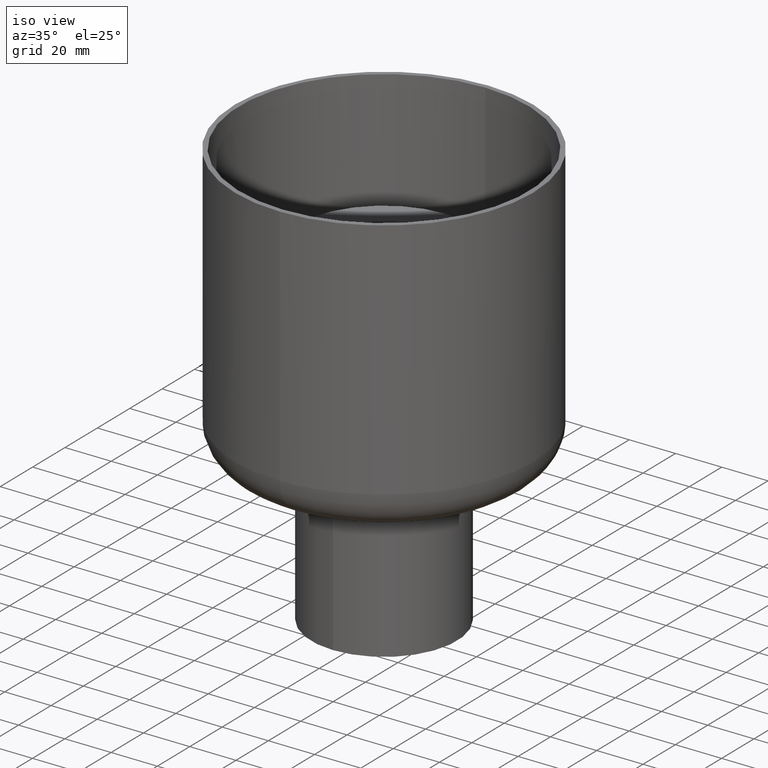
[diagram: clean part render]
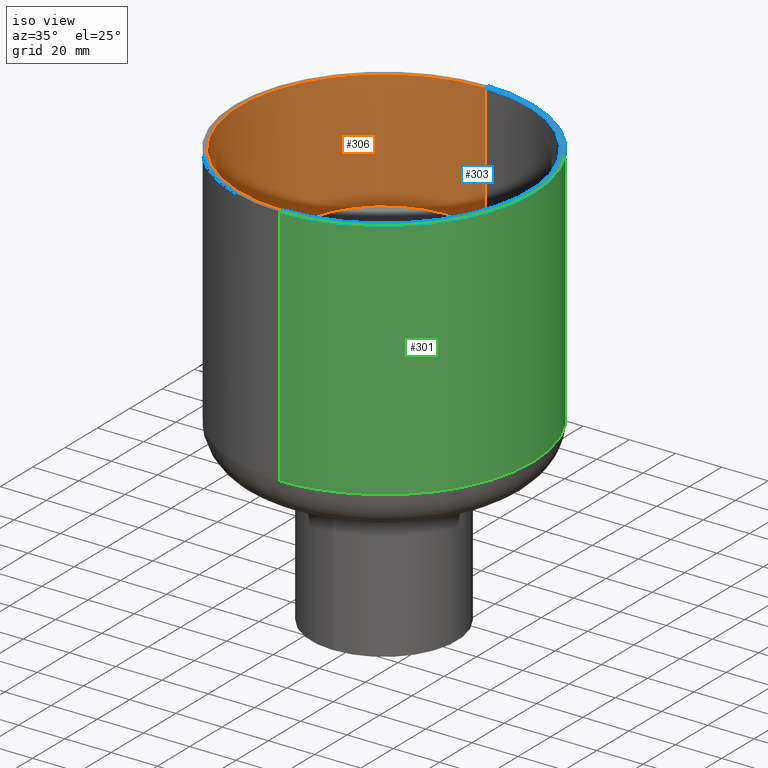
[diagram: same view with three faces highlighted in distinct colors, each labeled with its STEP entity id]
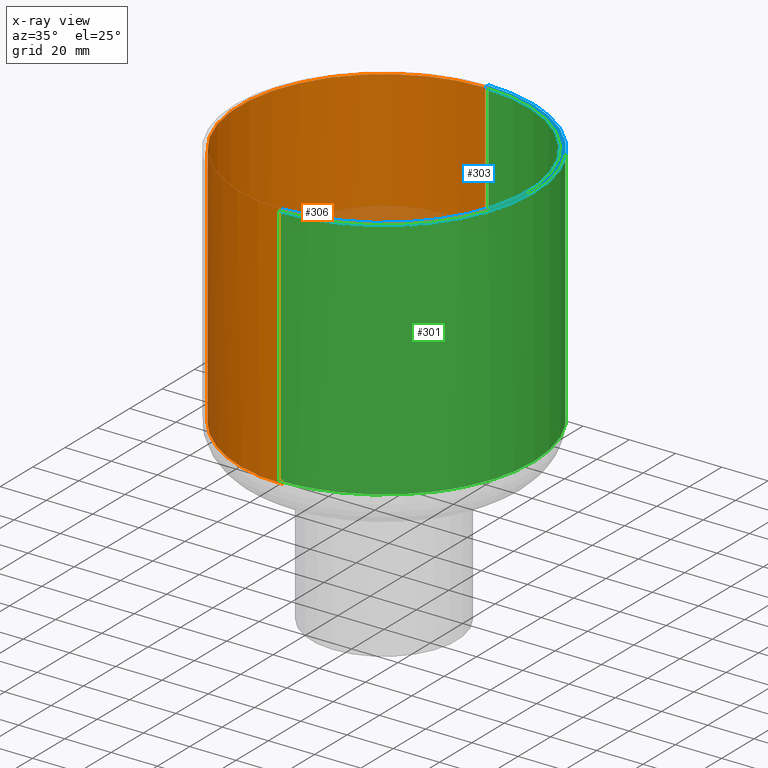
[diagram: x-ray of the same camera — body ghosted, the three highlighted faces saturated]
A machine part, iso view with three faces highlighted in distinct colors.
The next image is the same camera in x-ray (body ghosted, the three faces saturated) — at least one of them is partly hidden behind the body in this view.
Their STEP definitions:

[orange] entity #306 — the highlighted cylindrical surface (partial cylindrical patch) has radius 62.5 mm, axis along (0, -0, -1).
#40=FACE_OUTER_BOUND('',#64,.T.);
#64=EDGE_LOOP('',(#227,#228,#229,#230));
#88=CIRCLE('',#354,62.5000000000002);
#105=LINE('',#526,#119);
#106=LINE('',#538,#120);
#119=VECTOR('',#411,304.8);
#120=VECTOR('',#412,304.8);
#132=B_SPLINE_CURVE_WITH_KNOTS('',3,(#540,#541,#542,#543,#544,#545,#546,
#547,#548,#549),.UNSPECIFIED.,.F.,.F.,(4,1,1,1,1,1,1,4),(0.,0.142857142857143,
0.285714285714286,0.428571428571429,0.571428571428571,0.714285714285714,
0.857142857142857,1.),.UNSPECIFIED.);
#145=VERTEX_POINT('',#517);
#146=VERTEX_POINT('',#519);
#147=VERTEX_POINT('',#525);
#148=VERTEX_POINT('',#527);
#174=EDGE_CURVE('',#145,#146,#88,.T.);
#175=EDGE_CURVE('',#147,#145,#105,.T.);
#177=EDGE_CURVE('',#146,#148,#106,.T.);
#178=EDGE_CURVE('',#147,#148,#132,.T.);
#227=ORIENTED_EDGE('',*,*,#174,.T.);
#228=ORIENTED_EDGE('',*,*,#177,.T.);
#229=ORIENTED_EDGE('',*,*,#178,.F.);
#230=ORIENTED_EDGE('',*,*,#175,.T.);
#294=CYLINDRICAL_SURFACE('',#356,62.5000000000002);
#306=ADVANCED_FACE('',(#40),#294,.F.);
#354=AXIS2_PLACEMENT_3D('',#523,#407,#408);
#356=AXIS2_PLACEMENT_3D('',#539,#413,#414);
#407=DIRECTION('center_axis',(0.,1.63087261263545E-15,1.));
#408=DIRECTION('ref_axis',(1.61554457443259E-15,-1.,1.62430069394758E-15));
#411=DIRECTION('',(0.,1.57728115753224E-15,1.));
#412=DIRECTION('',(0.,-1.57728115753224E-15,-1.));
#413=DIRECTION('center_axis',(0.,-1.63087261263545E-15,-1.));
#414=DIRECTION('ref_axis',(1.61554457443259E-15,-1.,1.62430069394758E-15));
#517=CARTESIAN_POINT('',(-2.03037586743449E-13,62.5000000000004,-1.86528532766153E-13));
#519=CARTESIAN_POINT('',(0.,-62.4999999999999,1.73305438132791E-14));
#523=CARTESIAN_POINT('Origin',(-1.00971535902037E-13,2.31583910994234E-13,
-8.5265128291212E-14));
#525=CARTESIAN_POINT('',(-2.01943071804074E-13,62.5000000000002,-107.271926850122));
#526=CARTESIAN_POINT('',(-2.01943071804074E-13,62.5000000000002,-107.271926850122));
#527=CARTESIAN_POINT('',(0.,-62.5000000000001,-107.271926850122));
#538=CARTESIAN_POINT('',(0.,-62.4999999999999,1.69197988952874E-14));
#539=CARTESIAN_POINT('Origin',(-1.00971535902037E-13,0.,-142.));
#540=CARTESIAN_POINT('Ctrl Pts',(-2.01943071804074E-13,62.5000000000002,
-107.271926850122));
#541=CARTESIAN_POINT('Ctrl Pts',(-9.41376172392393,62.6365253742048,-107.271926850122));
#542=CARTESIAN_POINT('Ctrl Pts',(-28.0129003174214,58.1693868891732,-107.271926850122));
#543=CARTESIAN_POINT('Ctrl Pts',(-50.5406084722247,40.3156832899944,-107.271926850122));
#544=CARTESIAN_POINT('Ctrl Pts',(-63.0114717191921,14.3765556478745,-107.271926850122));
#545=CARTESIAN_POINT('Ctrl Pts',(-63.011471719192,-14.3765556478746,-107.271926850122));
#546=CARTESIAN_POINT('Ctrl Pts',(-50.5406084722247,-40.3156832899945,-107.271926850122));
#547=CARTESIAN_POINT('Ctrl Pts',(-28.0129003174212,-58.1693868891732,-107.271926850122));
#548=CARTESIAN_POINT('Ctrl Pts',(-9.41376172392372,-62.6365253742047,-107.271926850122));
#549=CARTESIAN_POINT('Ctrl Pts',(-3.65163628501808E-15,-62.5000000000001,
-107.271926850122));

[blue] entity #303 — the highlighted planar face has unit normal (0, -0, -1).
#25=PLANE('',#351);
#37=FACE_OUTER_BOUND('',#61,.T.);
#61=EDGE_LOOP('',(#215,#216,#217,#218));
#85=CIRCLE('',#348,64.5000000000002);
#87=CIRCLE('',#352,62.5000000000002);
#103=LINE('',#518,#117);
#104=LINE('',#521,#118);
#117=VECTOR('',#401,304.8);
#118=VECTOR('',#404,304.8);
#143=VERTEX_POINT('',#498);
#144=VERTEX_POINT('',#500);
#145=VERTEX_POINT('',#517);
#146=VERTEX_POINT('',#519);
#167=EDGE_CURVE('',#144,#143,#85,.T.);
#171=EDGE_CURVE('',#145,#143,#103,.T.);
#172=EDGE_CURVE('',#146,#145,#87,.T.);
#173=EDGE_CURVE('',#144,#146,#104,.T.);
#215=ORIENTED_EDGE('',*,*,#167,.T.);
#216=ORIENTED_EDGE('',*,*,#171,.F.);
#217=ORIENTED_EDGE('',*,*,#172,.F.);
#218=ORIENTED_EDGE('',*,*,#173,.F.);
#303=ADVANCED_FACE('',(#37),#25,.F.);
#348=AXIS2_PLACEMENT_3D('',#501,#392,#393);
#351=AXIS2_PLACEMENT_3D('',#516,#399,#400);
#352=AXIS2_PLACEMENT_3D('',#520,#402,#403);
#392=DIRECTION('center_axis',(0.,1.63087261263545E-15,1.));
#393=DIRECTION('ref_axis',(1.61554457443259E-15,-1.,1.57393478095696E-15));
#399=DIRECTION('center_axis',(0.,-1.63087261263545E-15,-1.));
#400=DIRECTION('ref_axis',(0.,-1.,1.63087261263545E-15));
#401=DIRECTION('',(-3.23108914886518E-15,1.,-1.63087261263544E-15));
#402=DIRECTION('center_axis',(0.,1.63087261263545E-15,1.));
#403=DIRECTION('ref_axis',(1.61554457443259E-15,-1.,1.62430069394758E-15));
#404=DIRECTION('',(0.,1.,-1.63087261263545E-15));
#498=CARTESIAN_POINT('',(-2.08405250101804E-13,64.5000000000005,-1.86117787848161E-13));
#500=CARTESIAN_POINT('',(0.,-64.5,1.69197988952874E-14));
#501=CARTESIAN_POINT('Origin',(-1.04202625050902E-13,2.31583910994234E-13,
-8.5265128291212E-14));
#516=CARTESIAN_POINT('Origin',(0.,2.31583910994234E-13,-8.45989944764369E-14));
#517=CARTESIAN_POINT('',(-2.03037586743449E-13,62.5000000000004,-1.86528532766153E-13));
#518=CARTESIAN_POINT('',(-2.01943071804074E-13,62.5000000000004,-1.86528532766153E-13));
#519=CARTESIAN_POINT('',(0.,-62.4999999999999,1.73305438132791E-14));
#520=CARTESIAN_POINT('Origin',(-1.00971535902037E-13,2.31583910994234E-13,
-8.5265128291212E-14));
#521=CARTESIAN_POINT('',(0.,-64.4999999999999,2.059228903855E-14));

[green] entity #301 — the highlighted cylindrical surface (partial cylindrical patch) has radius 64.5 mm, axis along (0, -0, -1).
#35=FACE_OUTER_BOUND('',#59,.T.);
#59=EDGE_LOOP('',(#207,#208,#209,#210));
#85=CIRCLE('',#348,64.5000000000002);
#101=LINE('',#499,#115);
#102=LINE('',#502,#116);
#115=VECTOR('',#391,304.8);
#116=VECTOR('',#394,304.8);
#129=B_SPLINE_CURVE_WITH_KNOTS('',3,(#487,#488,#489,#490,#491,#492,#493,
#494,#495,#496,#497),.UNSPECIFIED.,.F.,.F.,(4,1,1,1,1,1,1,1,4),(0.,0.125,
0.25,0.375,0.5,0.625,0.75,0.875,1.),.UNSPECIFIED.);
#141=VERTEX_POINT('',#485);
#142=VERTEX_POINT('',#486);
#143=VERTEX_POINT('',#498);
#144=VERTEX_POINT('',#500);
#165=EDGE_CURVE('',#141,#142,#129,.T.);
#166=EDGE_CURVE('',#143,#141,#101,.T.);
#167=EDGE_CURVE('',#144,#143,#85,.T.);
#168=EDGE_CURVE('',#142,#144,#102,.T.);
#207=ORIENTED_EDGE('',*,*,#165,.F.);
#208=ORIENTED_EDGE('',*,*,#166,.F.);
#209=ORIENTED_EDGE('',*,*,#167,.F.);
#210=ORIENTED_EDGE('',*,*,#168,.F.);
#291=CYLINDRICAL_SURFACE('',#347,64.5000000000002);
#301=ADVANCED_FACE('',(#35),#291,.T.);
#347=AXIS2_PLACEMENT_3D('',#484,#389,#390);
#348=AXIS2_PLACEMENT_3D('',#501,#392,#393);
#389=DIRECTION('center_axis',(0.,-1.63087261263545E-15,-1.));
#390=DIRECTION('ref_axis',(1.61554457443259E-15,-1.,1.57393478095696E-15));
#391=DIRECTION('',(0.,-1.60827728532819E-15,-1.));
#392=DIRECTION('center_axis',(0.,1.63087261263545E-15,1.));
#393=DIRECTION('ref_axis',(1.61554457443259E-15,-1.,1.57393478095696E-15));
#394=DIRECTION('',(0.,1.60827728532819E-15,1.));
#484=CARTESIAN_POINT('Origin',(-1.04202625050902E-13,0.,-142.));
#485=CARTESIAN_POINT('',(-2.08405250101804E-13,64.5000000000003,-105.204488365541));
#486=CARTESIAN_POINT('',(0.,-64.5000000000002,-105.204488365541));
#487=CARTESIAN_POINT('Ctrl Pts',(-2.08405250101804E-13,64.5000000000003,
-105.204488365541));
#488=CARTESIAN_POINT('Ctrl Pts',(8.47701262546022,64.58485089836,-105.204488365541));
#489=CARTESIAN_POINT('Ctrl Pts',(25.3093772856422,61.1022418982156,-105.204488365541));
#490=CARTESIAN_POINT('Ctrl Pts',(46.8001488873509,46.8062560905754,-105.204488365541));
#491=CARTESIAN_POINT('Ctrl Pts',(61.1403514841478,25.3230580586791,-105.204488365541));
#492=CARTESIAN_POINT('Ctrl Pts',(66.1798242579264,3.96557786608298E-13,
-105.204488365541));
#493=CARTESIAN_POINT('Ctrl Pts',(61.1403514841481,-25.3230580586784,-105.204488365541));
#494=CARTESIAN_POINT('Ctrl Pts',(46.8001488873514,-46.8062560905748,-105.204488365541));
#495=CARTESIAN_POINT('Ctrl Pts',(25.3093772856428,-61.1022418982153,-105.204488365541));
#496=CARTESIAN_POINT('Ctrl Pts',(8.47701262546084,-64.5848508983598,-105.204488365541));
#497=CARTESIAN_POINT('Ctrl Pts',(4.16121304080974E-13,-64.5000000000002,
-105.204488365541));
#498=CARTESIAN_POINT('',(-2.08405250101804E-13,64.5000000000005,-1.86117787848161E-13));
#499=CARTESIAN_POINT('',(-2.08405250101804E-13,64.5000000000005,-1.86117787848161E-13));
#500=CARTESIAN_POINT('',(0.,-64.5,1.69197988952874E-14));
#501=CARTESIAN_POINT('Origin',(-1.04202625050902E-13,2.31583910994234E-13,
-8.5265128291212E-14));
#502=CARTESIAN_POINT('',(0.,-64.5000000000002,-105.204488365541));